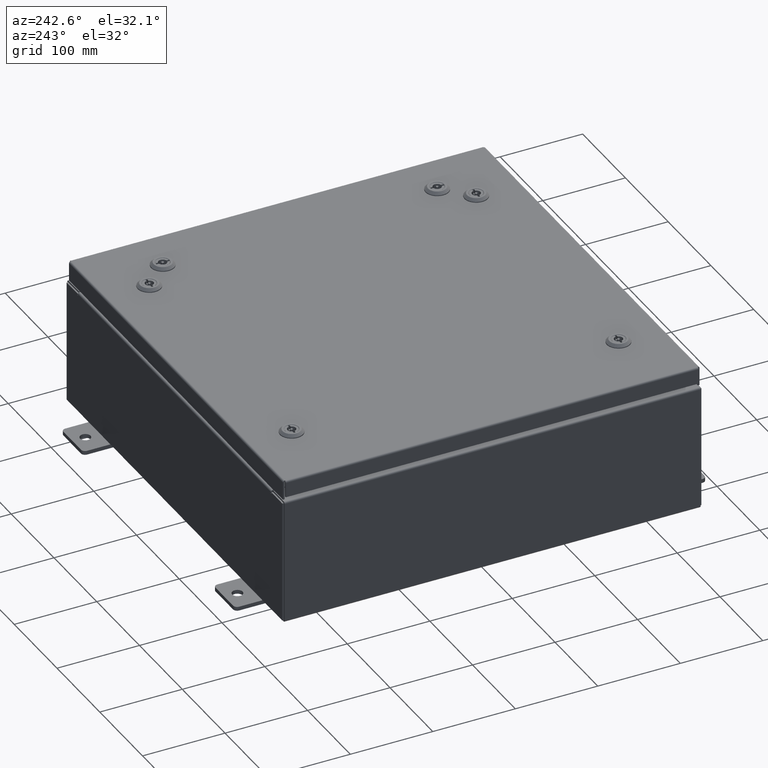
[diagram: clean part render]
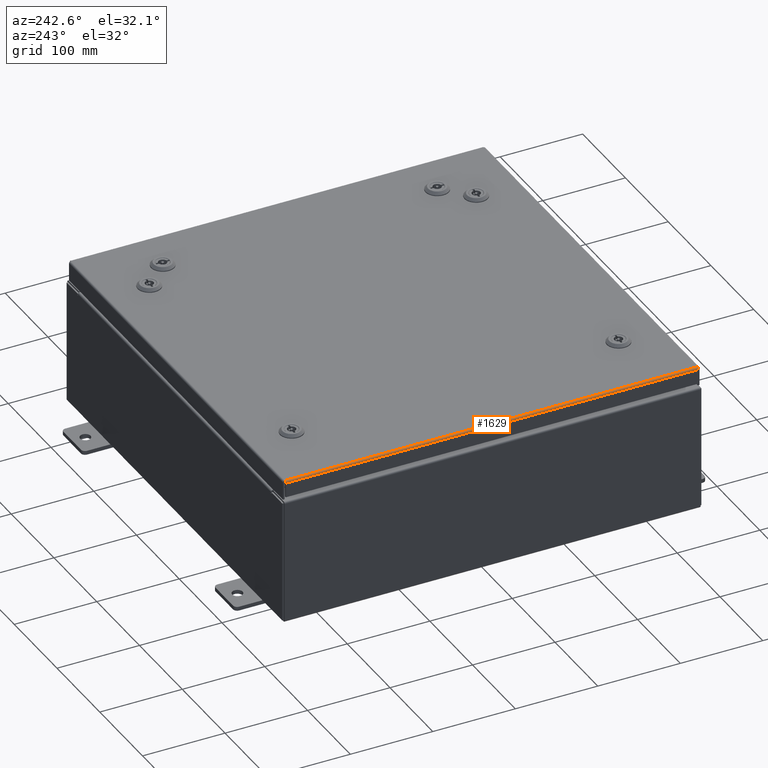
[diagram: same view with one face highlighted and labeled with its STEP entity id]
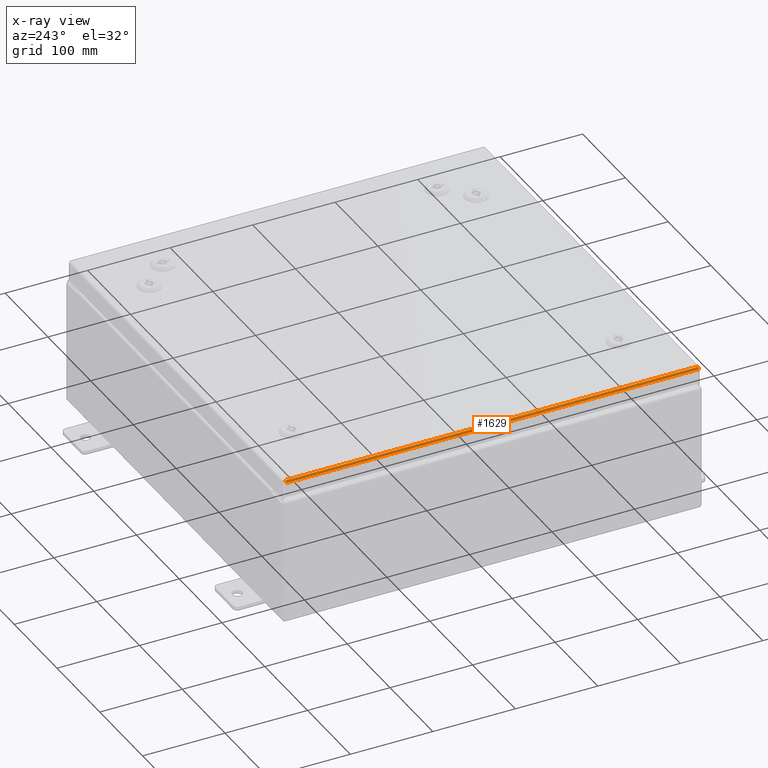
[diagram: x-ray of the same camera — body ghosted, the highlighted face saturated]
A machine part, auxiliary view. The second image highlights one B-rep face of the part: STEP entity #1629.
The next image is the same camera in x-ray: the body ghosted, the highlighted face saturated — about 0% of this face is hidden behind the body in this view.
In plain terms, the highlighted cylindrical surface (edge-blend (fillet) strip) has radius 2.2276 mm, axis along (0, 1, 0).
Its self-contained STEP definition (entity closure, byte-faithful):
#1017 = CARTESIAN_POINT ( 'NONE',  ( -9.872755289458313000, -9.849609644062715200, -0.002282596256190999900 ) ) ;
#1074 = ORIENTED_EDGE ( 'NONE', *, *, #50936, .T. ) ;
#1450 = FACE_OUTER_BOUND ( 'NONE', #7427, .T. ) ;
#1629 = ADVANCED_FACE ( 'NONE', ( #1450 ), #25683, .T. ) ;
#3283 = ORIENTED_EDGE ( 'NONE', *, *, #35627, .F. ) ;
#4194 = VERTEX_POINT ( 'NONE', #40829 ) ;
#4463 = CARTESIAN_POINT ( 'NONE',  ( -9.861279903154994000, 9.849704822031354100, -2.356152199027769400E-015 ) ) ;
#5874 = CARTESIAN_POINT ( 'NONE',  ( -9.903695747341799900, -9.849324110156782600, -0.01756921792168139200 ) ) ;
#6777 = EDGE_CURVE ( 'NONE', #23470, #4194, #22065, .T. ) ;
#6865 = CARTESIAN_POINT ( 'NONE',  ( -9.849800000000001900, 9.849799999999996600, -0.08770000000000026400 ) ) ;
#7070 = B_SPLINE_CURVE_WITH_KNOTS ( 'NONE', 3,
 ( #15405, #20272, #1017, #34864, #5874, #39719, #10738, #44615, #15607, #49487 ),
 .UNSPECIFIED., .F., .F.,
 ( 4, 2, 2, 2, 4 ),
 ( 0.0000000000000000000, 0.2500000000000000000, 0.5000000000000000000, 0.7500000000000000000, 1.000000000000000000 ),
 .UNSPECIFIED. ) ;
#7427 = EDGE_LOOP ( 'NONE', ( #3283, #60873, #1074, #18353 ) ) ;
#10738 = CARTESIAN_POINT ( 'NONE',  ( -9.926431066258668800, -9.849038576250846300, -0.04353261542147312400 ) ) ;
#11725 = DIRECTION ( 'NONE',  ( -1.000000000000000000, 0.0000000000000000000, 6.035297021350771100E-015 ) ) ;
#12658 = VERTEX_POINT ( 'NONE', #38858 ) ;
#14011 = CARTESIAN_POINT ( 'NONE',  ( -9.937500000000001800, 9.848657864376269400, -0.08770000000000026400 ) ) ;
#15063 = CARTESIAN_POINT ( 'NONE',  ( -9.937500000000001800, 9.848657864376269400, -0.08770000000000026400 ) ) ;
#15405 = CARTESIAN_POINT ( 'NONE',  ( -9.849799999999996600, -9.849800000000001900, 0.0000000000000000000 ) ) ;
#15607 = CARTESIAN_POINT ( 'NONE',  ( -9.937500000000000000, -9.848753042344915400, -0.07622009684500730100 ) ) ;
#16443 = LINE ( 'NONE', #48672, #42222 ) ;
#18353 = ORIENTED_EDGE ( 'NONE', *, *, #58456, .F. ) ;
#20272 = CARTESIAN_POINT ( 'NONE',  ( -9.861279903154994000, -9.849704822031359400, -2.356919197365833100E-015 ) ) ;
#22065 = B_SPLINE_CURVE_WITH_KNOTS ( 'NONE', 3,
 ( #14011, #43023, #52761, #23729, #57650, #28643, #62512, #33465, #4463, #38330 ),
 .UNSPECIFIED., .F., .F.,
 ( 4, 2, 2, 2, 4 ),
 ( 0.0000000000000000000, 0.2500000000000000000, 0.5000000000000000000, 0.7500000000000000000, 1.000000000000000000 ),
 .UNSPECIFIED. ) ;
#22885 = VERTEX_POINT ( 'NONE', #40696 ) ;
#23470 = VERTEX_POINT ( 'NONE', #15063 ) ;
#23729 = CARTESIAN_POINT ( 'NONE',  ( -9.926431066258667000, 9.849038576250844600, -0.04353261542147309600 ) ) ;
#24510 = DIRECTION ( 'NONE',  ( 0.0000000000000000000, -1.000000000000000000, 0.0000000000000000000 ) ) ;
#25683 = CYLINDRICAL_SURFACE ( 'NONE', #62416, 0.08769999999999808500 ) ;
#28643 = CARTESIAN_POINT ( 'NONE',  ( -9.903695747341799900, 9.849324110156775400, -0.01756921792168139200 ) ) ;
#28964 = CARTESIAN_POINT ( 'NONE',  ( -9.937500000000000000, -9.937500000000001800, -0.08770000000000026400 ) ) ;
#33465 = CARTESIAN_POINT ( 'NONE',  ( -9.872755289458309500, 9.849609644062709900, -0.002282596256190999900 ) ) ;
#34864 = CARTESIAN_POINT ( 'NONE',  ( -9.893967384578521900, -9.849419288125425000, -0.01106893374133357700 ) ) ;
#35627 = EDGE_CURVE ( 'NONE', #4194, #12658, #16443, .T. ) ;
#37491 = LINE ( 'NONE', #28964, #50389 ) ;
#38330 = CARTESIAN_POINT ( 'NONE',  ( -9.849800000000001900, 9.849799999999996600, -2.185478394931410600E-015 ) ) ;
#38858 = CARTESIAN_POINT ( 'NONE',  ( -9.849799999999996600, -9.849800000000001900, 0.0000000000000000000 ) ) ;
#39719 = CARTESIAN_POINT ( 'NONE',  ( -9.919930782078322900, -9.849133754219494100, -0.03380425265820124300 ) ) ;
#40696 = CARTESIAN_POINT ( 'NONE',  ( -9.937500000000000000, -9.848657864376273000, -0.08770000000000026400 ) ) ;
#40829 = CARTESIAN_POINT ( 'NONE',  ( -9.849800000000001900, 9.849799999999996600, -2.185478394931410600E-015 ) ) ;
#42222 = VECTOR ( 'NONE', #24510, 39.37007874015748100 ) ;
#43023 = CARTESIAN_POINT ( 'NONE',  ( -9.937499999999994700, 9.848753042344910100, -0.07622009684500730100 ) ) ;
#44615 = CARTESIAN_POINT ( 'NONE',  ( -9.935217403743813200, -9.848848220313561400, -0.06474471054169148000 ) ) ;
#45806 = DIRECTION ( 'NONE',  ( -0.0000000000000000000, 1.000000000000000000, -0.0000000000000000000 ) ) ;
#48672 = CARTESIAN_POINT ( 'NONE',  ( -9.849800000000001900, 9.849799999999996600, -2.185478394931410600E-015 ) ) ;
#49487 = CARTESIAN_POINT ( 'NONE',  ( -9.937500000000000000, -9.848657864376273000, -0.08770000000000026400 ) ) ;
#50389 = VECTOR ( 'NONE', #62842, 39.37007874015748100 ) ;
#50936 = EDGE_CURVE ( 'NONE', #23470, #22885, #37491, .T. ) ;
#52761 = CARTESIAN_POINT ( 'NONE',  ( -9.935217403743813200, 9.848848220313559700, -0.06474471054169149400 ) ) ;
#57650 = CARTESIAN_POINT ( 'NONE',  ( -9.919930782078322900, 9.849133754219488800, -0.03380425265820124300 ) ) ;
#58456 = EDGE_CURVE ( 'NONE', #12658, #22885, #7070, .T. ) ;
#60873 = ORIENTED_EDGE ( 'NONE', *, *, #6777, .F. ) ;
#62416 = AXIS2_PLACEMENT_3D ( 'NONE', #6865, #45806, #11725 ) ;
#62512 = CARTESIAN_POINT ( 'NONE',  ( -9.893967384578527200, 9.849419288125421400, -0.01106893374133357900 ) ) ;
#62842 = DIRECTION ( 'NONE',  ( 1.099611771034679600E-016, -1.000000000000000000, -4.554220009055657300E-045 ) ) ;